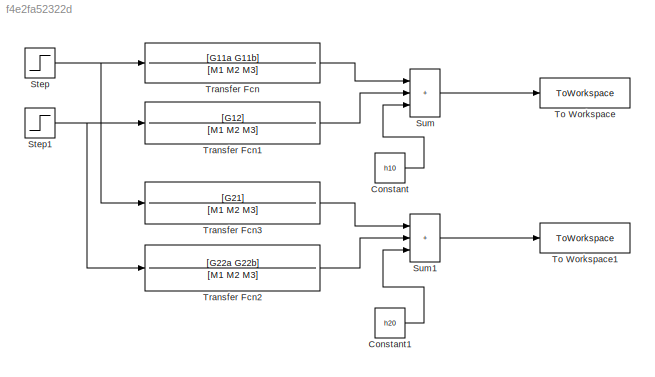
MODEL slx_f4e2fa52322d
KIND model
CONFIG AbsTol = auto
CONFIG EnableMultiTasking = off
CONFIG FixedStep = auto
CONFIG MaxStep = auto
CONFIG MinStep = auto
CONFIG RelTol = 1e-3
CONFIG SampleTimeConstraint = Unconstrained
CONFIG Solver = VariableStepAuto
CONFIG SolverName = VariableStepAuto
CONFIG StartTime = 0.0
CONFIG StopTime = 10.0
BLOCK [Constant] Constant
  Value = h10
BLOCK [Constant] Constant1
  Value = h20
BLOCK [Step] Step
  After = 0+dfwe1
  SampleTime = 0
  Time = 5
BLOCK [Step] Step1
  After = 0+dfwe2
  SampleTime = 0
  Time = 5
BLOCK [Sum] Sum
  IconShape = rectangular
  Inputs = +++
  Ports = [3, 1]
BLOCK [Sum] Sum1
  IconShape = rectangular
  Inputs = +++
  Ports = [3, 1]
BLOCK [ToWorkspace] To Workspace
  FixptAsFi = on
  MaxDataPoints = inf
  Ports = [1]
  SampleTime = -1
  VariableName = h1
BLOCK [ToWorkspace] To Workspace1
  FixptAsFi = on
  MaxDataPoints = inf
  Ports = [1]
  SampleTime = -1
  VariableName = h2
BLOCK [TransferFcn] Transfer Fcn
  Denominator = [M1 M2 M3]
  Numerator = [G11a G11b]
BLOCK [TransferFcn] Transfer Fcn1
  Denominator = [M1 M2 M3]
  Numerator = [G12]
BLOCK [TransferFcn] Transfer Fcn2
  Denominator = [M1 M2 M3]
  Numerator = [G22a G22b]
BLOCK [TransferFcn] Transfer Fcn3
  Denominator = [M1 M2 M3]
  Numerator = [G21]
LINE Constant1:1 -> Sum1:3
LINE Constant:1 -> Sum:3
NET Step1:1 -> Transfer Fcn1:1, Transfer Fcn2:1
NET Step:1 -> Transfer Fcn3:1, Transfer Fcn:1
LINE Sum1:1 -> To Workspace1:1
LINE Sum:1 -> To Workspace:1
LINE Transfer Fcn1:1 -> Sum:2
LINE Transfer Fcn2:1 -> Sum1:2
LINE Transfer Fcn3:1 -> Sum1:1
LINE Transfer Fcn:1 -> Sum:1
note: NET lines group one-source signal fan-out (src -> all destinations, sorted); 1:1 wires keep LINE
